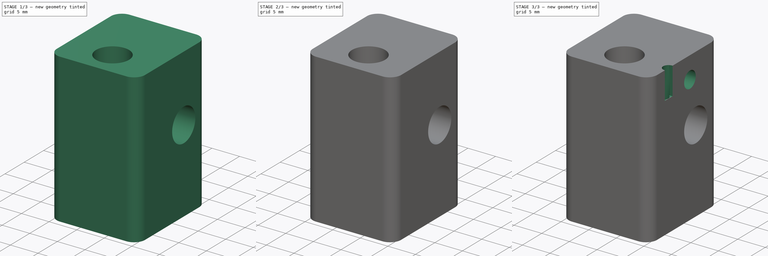
[diagram: build sequence overview — one tinted view per stage of 3, left to right]
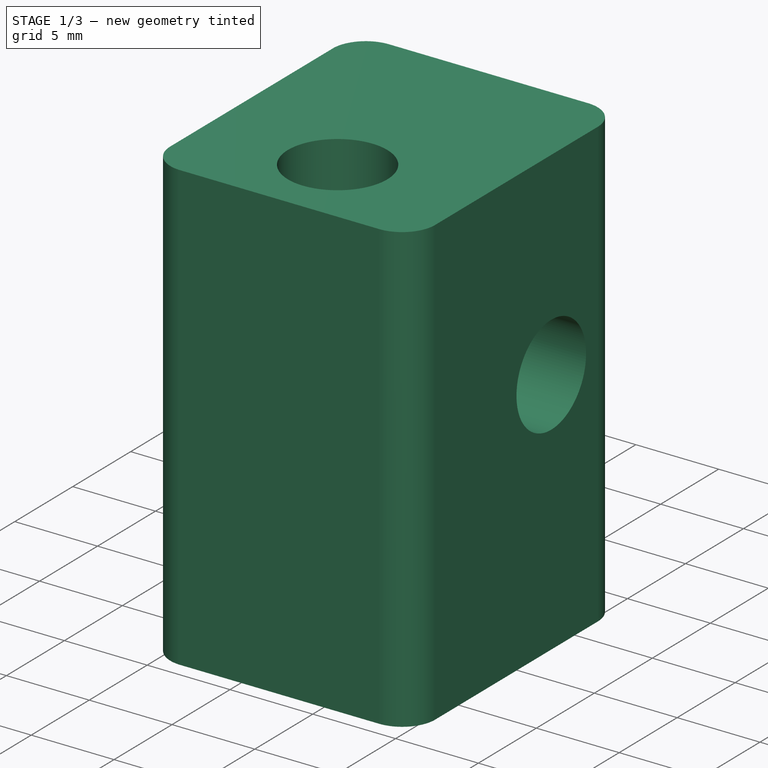
[diagram: stage 1 of 3 — iso view after this stage's code; geometry added in this stage tinted green]
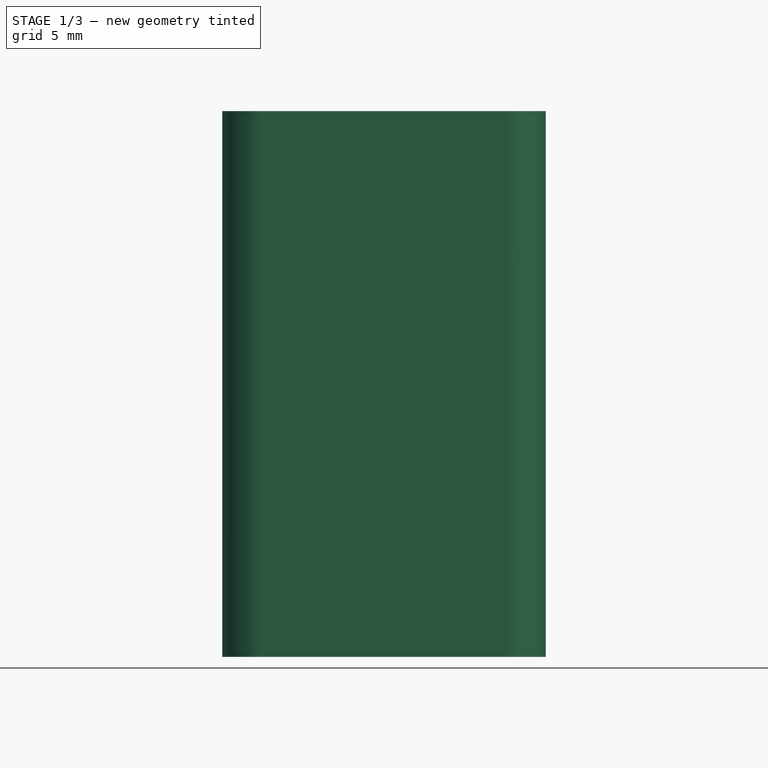
[diagram: stage 1 of 3 — front view after this stage's code; geometry added in this stage tinted green]
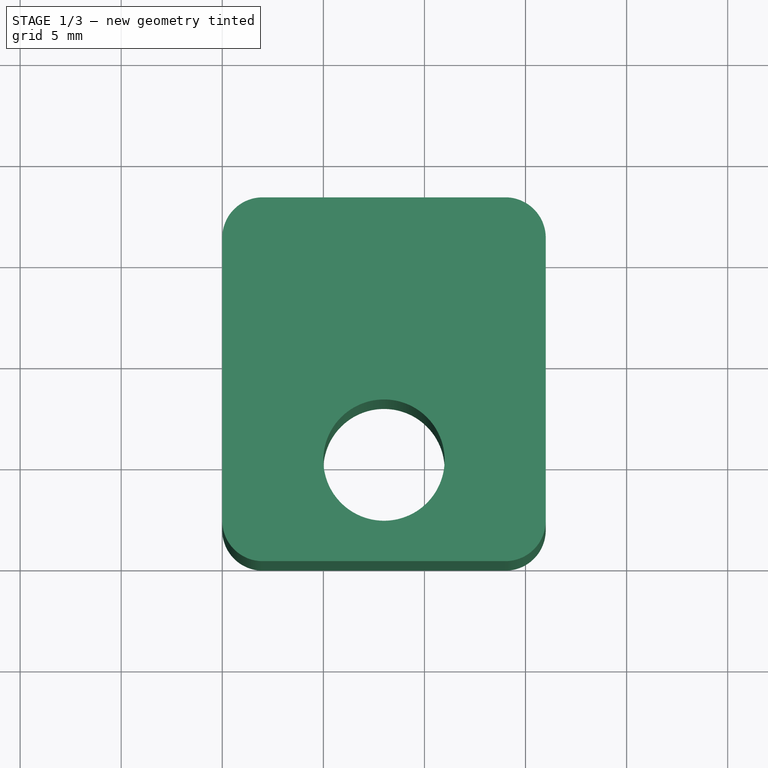
[diagram: stage 1 of 3 — top view after this stage's code; geometry added in this stage tinted green]
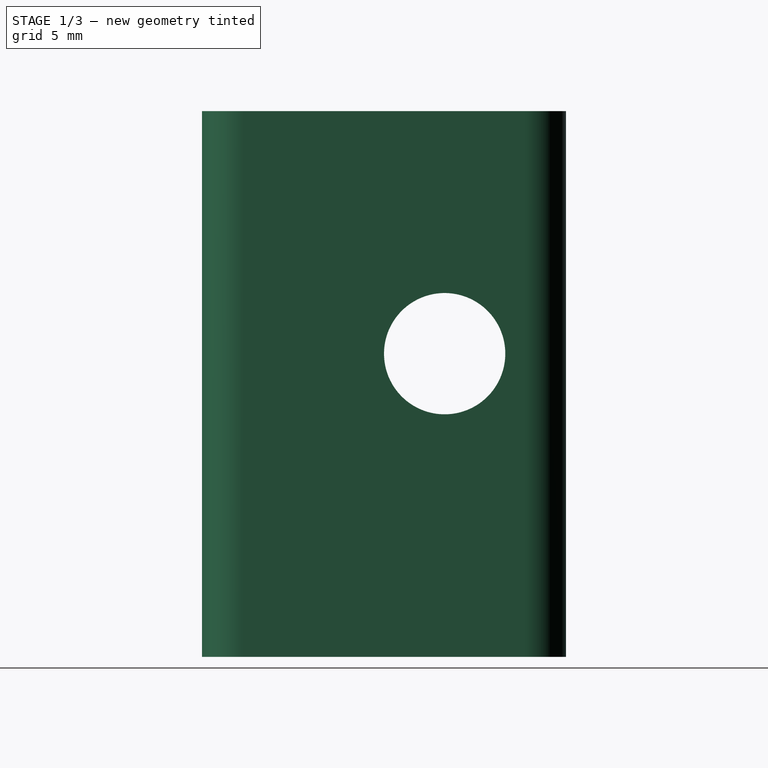
[diagram: stage 1 of 3 — right view after this stage's code; geometry added in this stage tinted green]
FCSTD DOCUMENT  (FreeCAD 0.14R3702 (Git))
Label: extended_hex_HB_0.1
License: CC-BY 3.0
LicenseURL: http://creativecommons.org/licenses/by/3.0/
objects: Sketcher::SketchObject×7, PartDesign::Pocket×6, PartDesign::Pad×1, PartDesign::Fillet×1
note: 22 computed .brp shape members not serialized (recipe doc carries the construction recipe); baked Part::Feature solids carry a one-line shape summary decoded from their .brp

FEATURE [Sketcher::SketchObject] Sketch
  sketch-geometry (5):
    g0: LineSegment StartX=0 StartY=0 StartZ=0 EndX=16 EndY=0 EndZ=0
    g1: LineSegment StartX=16 StartY=0 StartZ=0 EndX=16 EndY=18 EndZ=0
    g2: LineSegment StartX=16 StartY=18 StartZ=0 EndX=0 EndY=18 EndZ=0
    g3: LineSegment StartX=0 StartY=18 StartZ=0 EndX=0 EndY=0 EndZ=0
    g4: Circle CenterX=8 CenterY=5 CenterZ=0 NormalX=0 NormalY=0 NormalZ=1 Radius=3
  constraints (14):
    c: Coincident(g0,g1)
    c: Coincident(g1,g2)
    c: Coincident(g2,g3)
    c: Coincident(g3,g0)
    c: Horizontal(g0)
    c: Horizontal(g2)
    c: Vertical(g1)
    c: Vertical(g3)
    c: Coincident(g0,g-1)
    c: DistanceY(g3) = -18
    c: DistanceX(g2) = -16
    c: DistanceX(g4) = 8
    c: DistanceY(g4) = 5
    c: Radius(g4) = 3
FEATURE [PartDesign::Pad] Pad
  Length = 27
  Length2 = 100
  Sketch = -> Sketch
  Type = 0
FEATURE [PartDesign::Fillet] Fillet
  Base = -> Pad [Edge1,Edge2,Edge8,Edge5]
  Radius = 2
FEATURE [Sketcher::SketchObject] Sketch001
  Placement = pos=(16,0,0) rot=(0.57735,0.57735,0.57735;2.0944rad)
  Support = -> Fillet [Face7]
  sketch-geometry (1):
    g0: Circle CenterX=12 CenterY=15 CenterZ=0 NormalX=0 NormalY=0 NormalZ=1 Radius=3
  constraints (3):
    c: DistanceX(g0) = 12
    c: DistanceY(g0) = 15
    c: Radius(g0) = 3
FEATURE [PartDesign::Pocket] Pocket
  Length = 5
  Sketch = -> Sketch001
  Type = 1
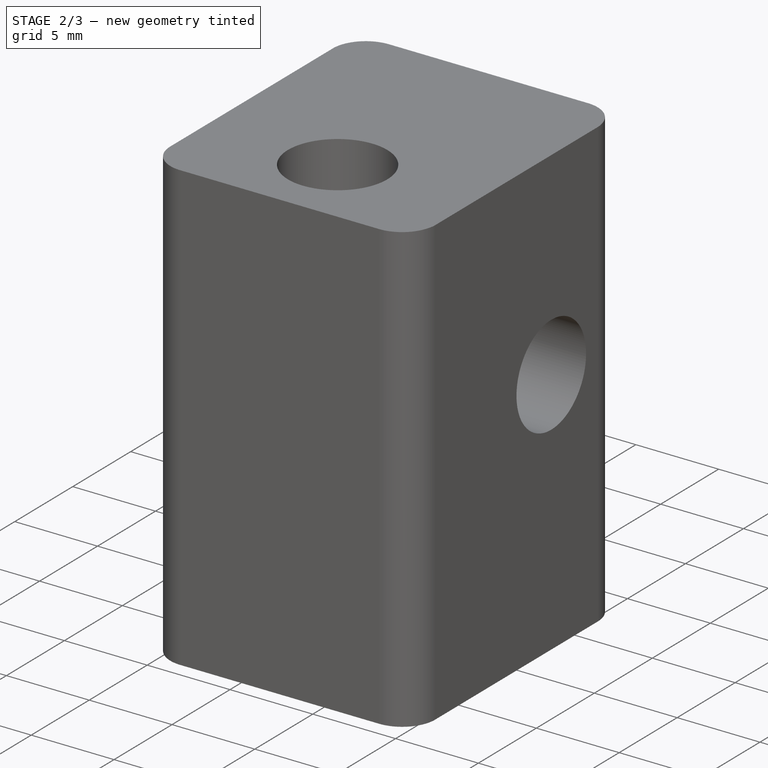
[diagram: stage 2 of 3 — iso view after this stage's code; geometry added in this stage tinted green]
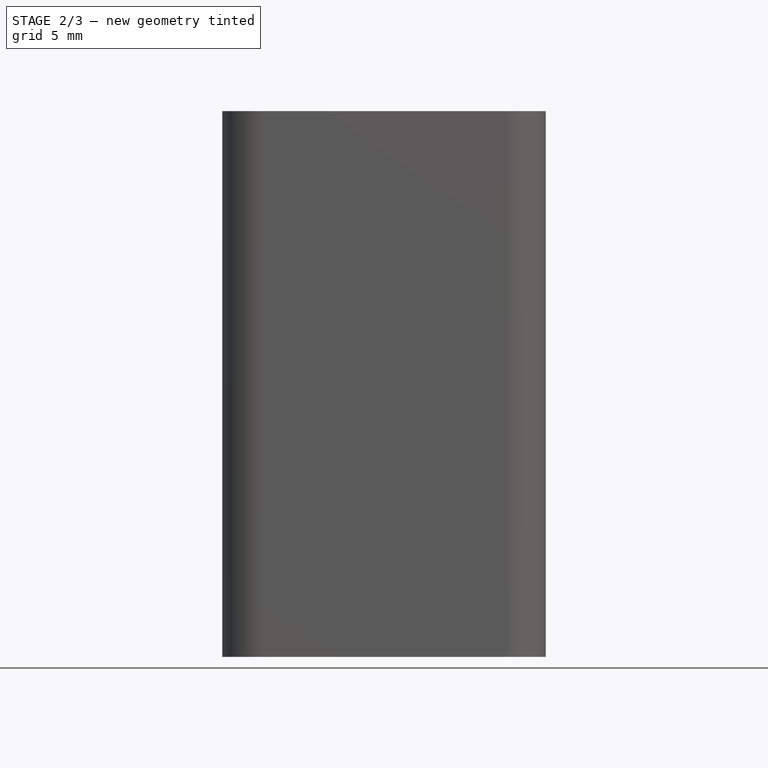
[diagram: stage 2 of 3 — front view after this stage's code; geometry added in this stage tinted green]
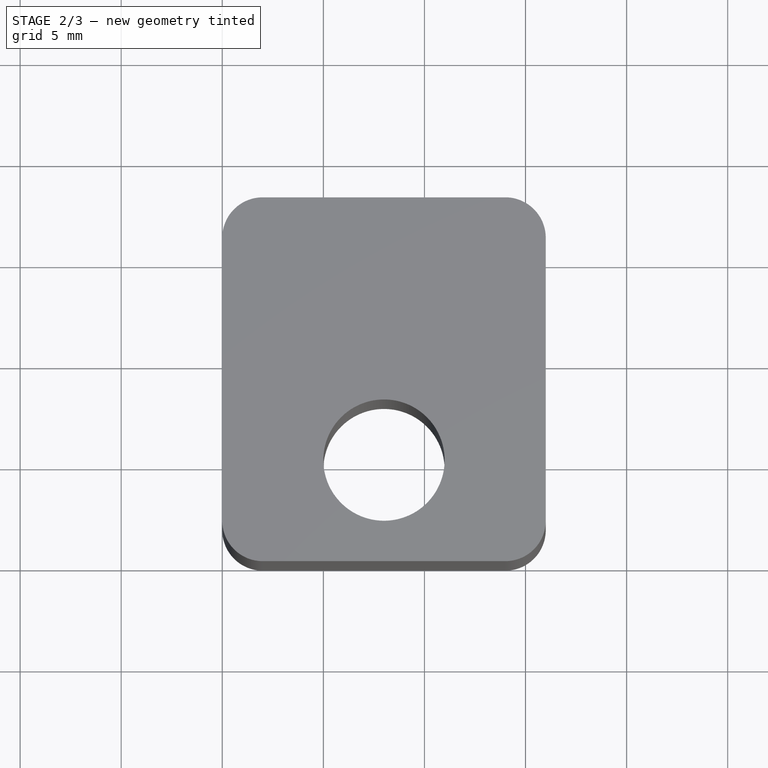
[diagram: stage 2 of 3 — top view after this stage's code; geometry added in this stage tinted green]
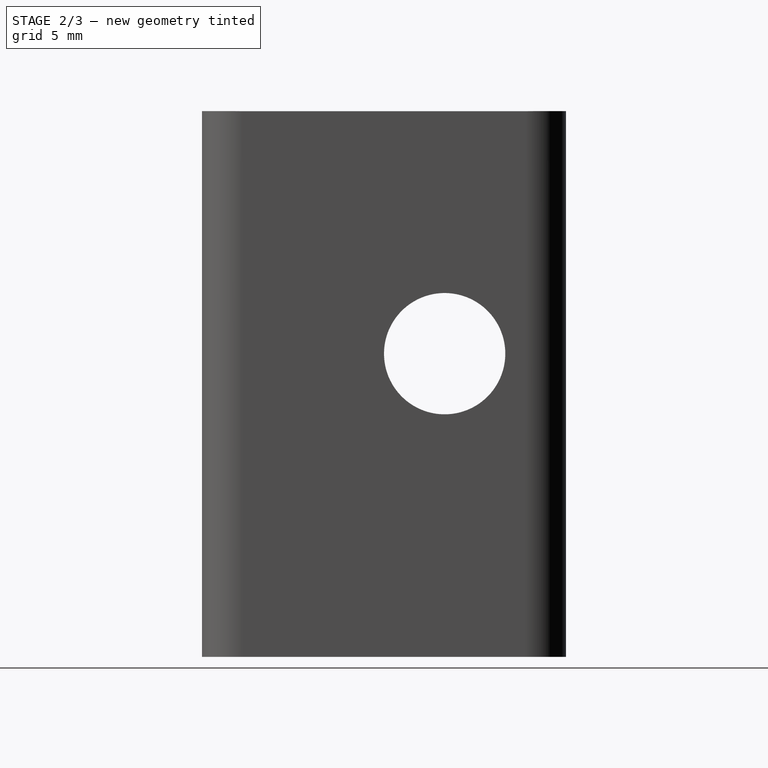
[diagram: stage 2 of 3 — right view after this stage's code; geometry added in this stage tinted green]
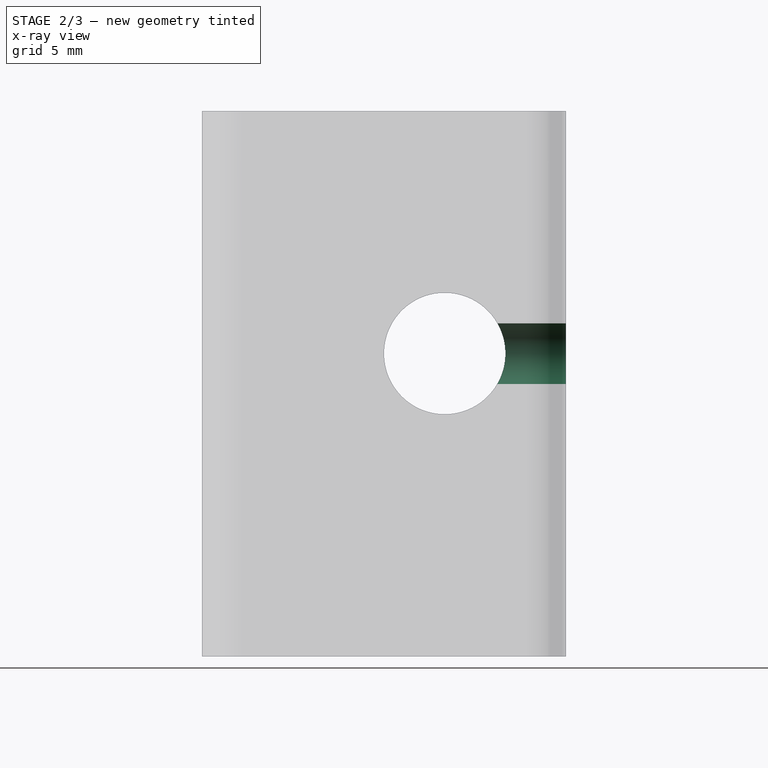
[diagram: stage 2 of 3 — x-ray composite at the right view; earlier geometry ghosted, this stage's added geometry solid]
FEATURE [Sketcher::SketchObject] Sketch002
  Placement = pos=(0,18,0) rot=(0,0.707107,0.707107;3.14159rad)
  Support = -> Pocket [Face10]
  sketch-geometry (1):
    g0: Circle CenterX=-8 CenterY=15 CenterZ=0 NormalX=0 NormalY=0 NormalZ=1 Radius=1.5
  constraints (3):
    c: DistanceX(g0) = -8
    c: DistanceY(g0) = 15
    c: Radius(g0) = 1.5
FEATURE [PartDesign::Pocket] Pocket001
  Length = 5
  Sketch = -> Sketch002
  Type = 0
FEATURE [Sketcher::SketchObject] Sketch003
  ExternalGeometry = -> [Pocket001]
  Placement = pos=(0,0,0) rot=(1,0,0;1.5708rad)
  Support = -> Pocket001 [Face1]
  sketch-geometry (3):
    g0: LineSegment StartX=15 StartY=27.2 StartZ=0 EndX=20 EndY=26.1372 EndZ=0
    g1: LineSegment StartX=20 StartY=26.1372 StartZ=0 EndX=20 EndY=27.2 EndZ=0
    g2: LineSegment StartX=20 StartY=27.2 StartZ=0 EndX=15 EndY=27.2 EndZ=0
  constraints (9):
    c: Coincident(g0,g1)
    c: Vertical(g1)
    c: Coincident(g1,g2)
    c: Coincident(g2,g0)
    c: Horizontal(g2)
    c: Angle(g0,g2) = 0.20944
    c: DistanceX(g2) = -5
    c: DistanceX(g-3,g0) = 1
    c: DistanceY(g0,g-3) = -0.2
FEATURE [PartDesign::Pocket] Pocket002
  Length = 5
  Sketch = -> Sketch003
  Type = 1
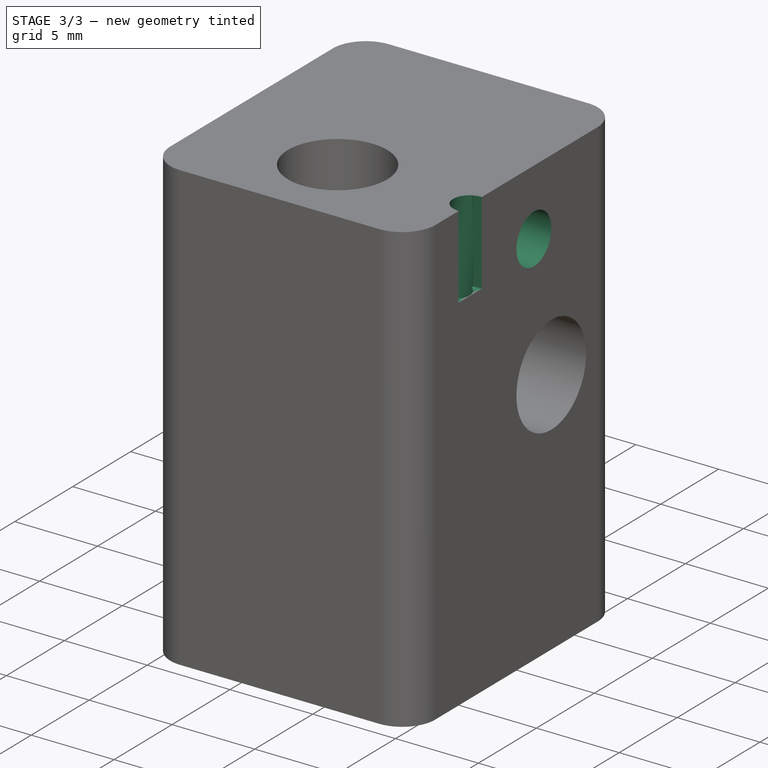
[diagram: stage 3 of 3 — iso view after this stage's code; geometry added in this stage tinted green]
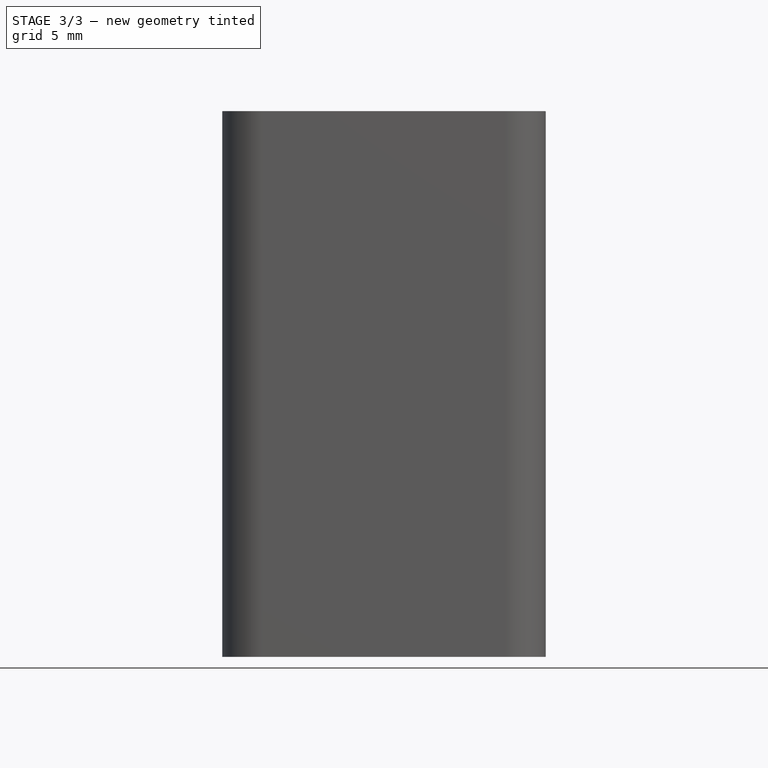
[diagram: stage 3 of 3 — front view after this stage's code; geometry added in this stage tinted green]
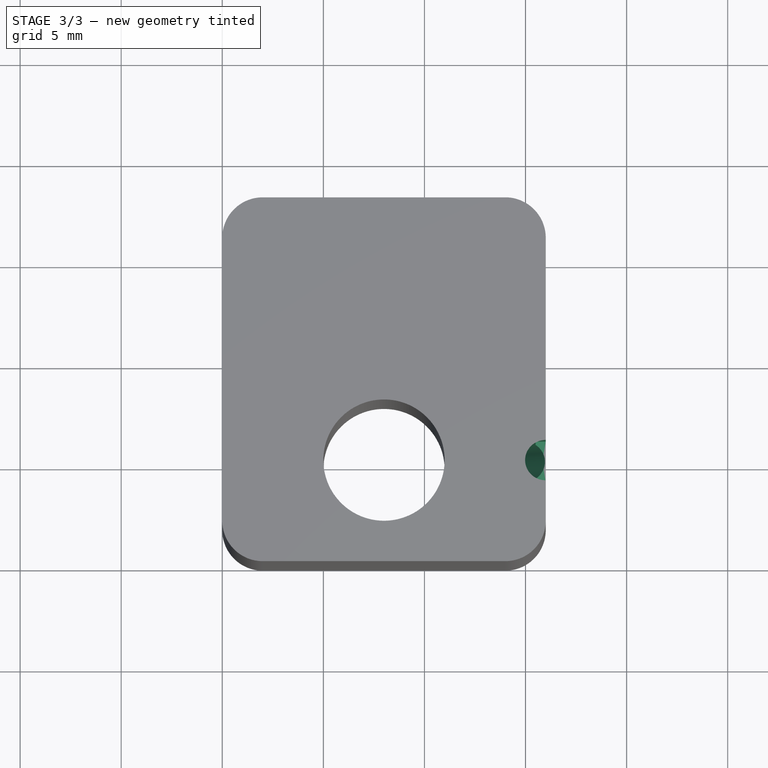
[diagram: stage 3 of 3 — top view after this stage's code; geometry added in this stage tinted green]
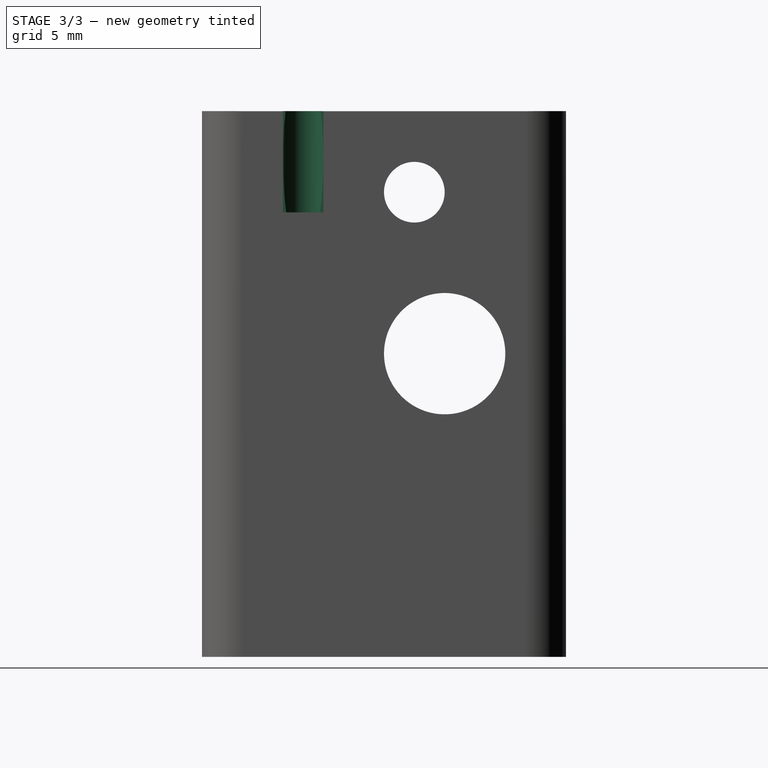
[diagram: stage 3 of 3 — right view after this stage's code; geometry added in this stage tinted green]
FEATURE [Sketcher::SketchObject] Sketch004
  ExternalGeometry = -> [Pocket002]
  Placement = pos=(6.18003,0,29.0747) rot=(0,1,0;0.20944rad)
  Support = -> Pocket002 [Face12]
  sketch-geometry (1):
    g0: Circle CenterX=10.0394 CenterY=5 CenterZ=0 NormalX=0 NormalY=0 NormalZ=1 Radius=1
  constraints (3):
    c: PointOnObject(g0,g-3)
    c: DistanceY(g-1,g0) = 5
    c: Radius(g0) = 1
FEATURE [PartDesign::Pocket] Pocket003
  Length = 14.5
  Sketch = -> Sketch004
  Type = 0
FEATURE [Sketcher::SketchObject] Sketch005
  ExternalGeometry = -> [Pocket003]
  Placement = pos=(16,0,0) rot=(0.57735,0.57735,0.57735;2.0944rad)
  Support = -> Pocket003 [Face7]
  sketch-geometry (4):
    g0: LineSegment StartX=4 StartY=26.9874 StartZ=0 EndX=6 EndY=26.9874 EndZ=0
    g1: LineSegment StartX=6 StartY=26.9874 StartZ=0 EndX=6 EndY=21.9874 EndZ=0
    g2: LineSegment StartX=6 StartY=21.9874 StartZ=0 EndX=4 EndY=21.9874 EndZ=0
    g3: LineSegment StartX=4 StartY=21.9874 StartZ=0 EndX=4 EndY=26.9874 EndZ=0
  constraints (11):
    c: Coincident(g0,g1)
    c: Coincident(g1,g2)
    c: Coincident(g2,g3)
    c: Coincident(g3,g0)
    c: Horizontal(g0)
    c: Horizontal(g2)
    c: Vertical(g1)
    c: Vertical(g3)
    c: Coincident(g0,g-3)
    c: DistanceX(g0) = 2
    c: DistanceY(g3) = 5
FEATURE [PartDesign::Pocket] Pocket004
  Length = 0.5
  Sketch = -> Sketch005
  Type = 0
FEATURE [Sketcher::SketchObject] Sketch006
  ExternalGeometry = -> [Pocket004]
  Placement = pos=(16,0,0) rot=(0.57735,0.57735,0.57735;2.0944rad)
  Support = -> Pocket004 [Face7]
  sketch-geometry (1):
    g0: Circle CenterX=10.5 CenterY=22.9874 CenterZ=0 NormalX=0 NormalY=0 NormalZ=1 Radius=1.5
  constraints (3):
    c: Radius(g0) = 1.5
    c: DistanceY(g0,g-3) = 4
    c: DistanceX(g0,g-5) = 1.5
FEATURE [PartDesign::Pocket] Pocket005
  Length = 5
  Sketch = -> Sketch006
  Type = 1
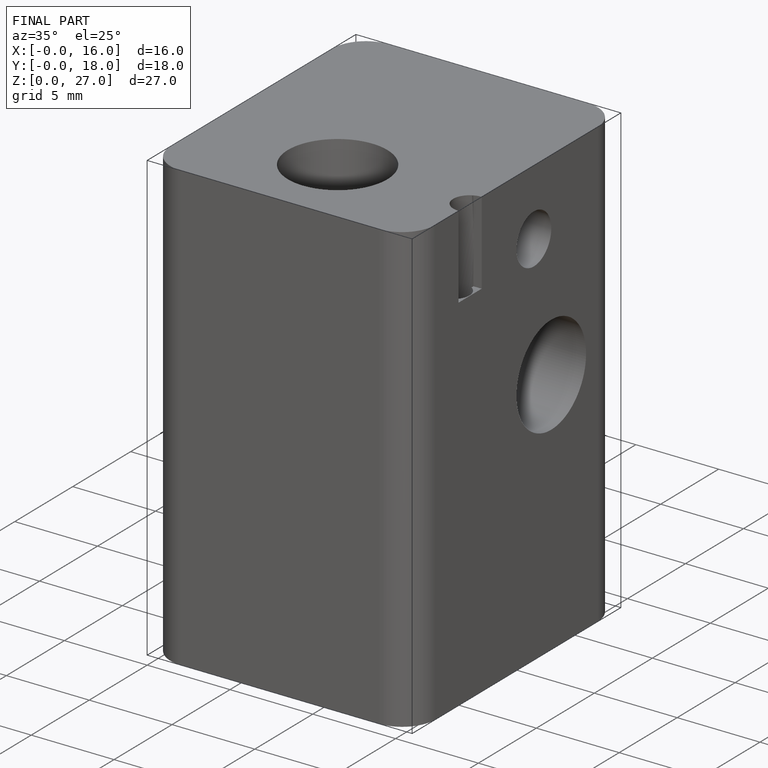
[diagram: finished part — iso view with bounding-box wireframe]
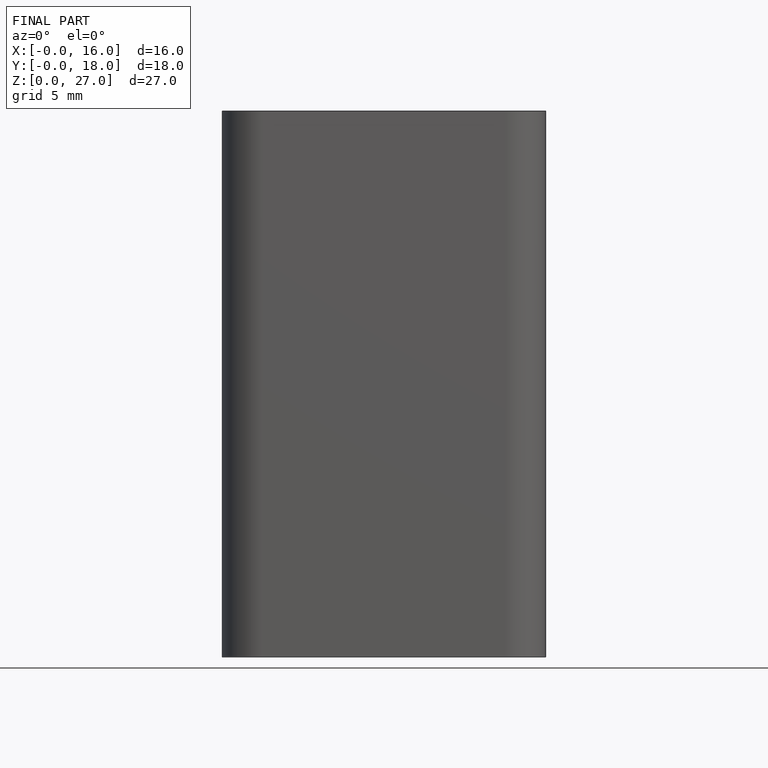
[diagram: finished part — front view with bounding-box wireframe]
